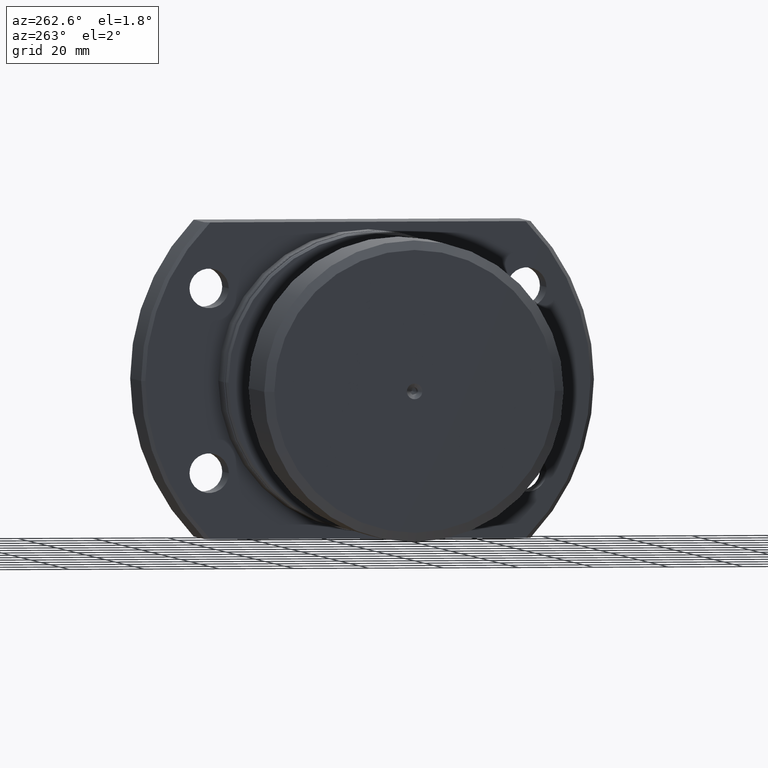
[diagram: clean part render]
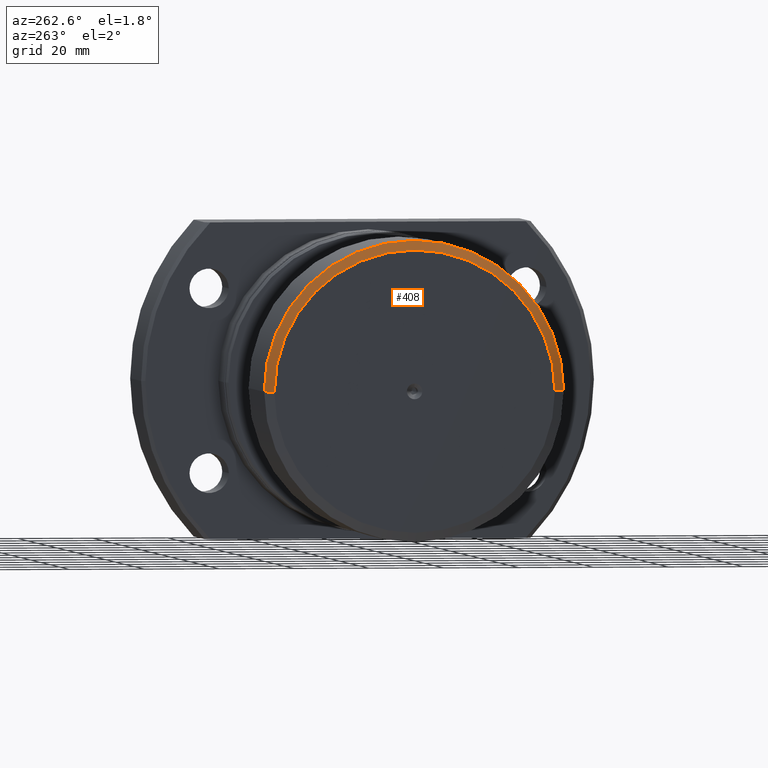
[diagram: same view with one face highlighted and labeled with its STEP entity id]
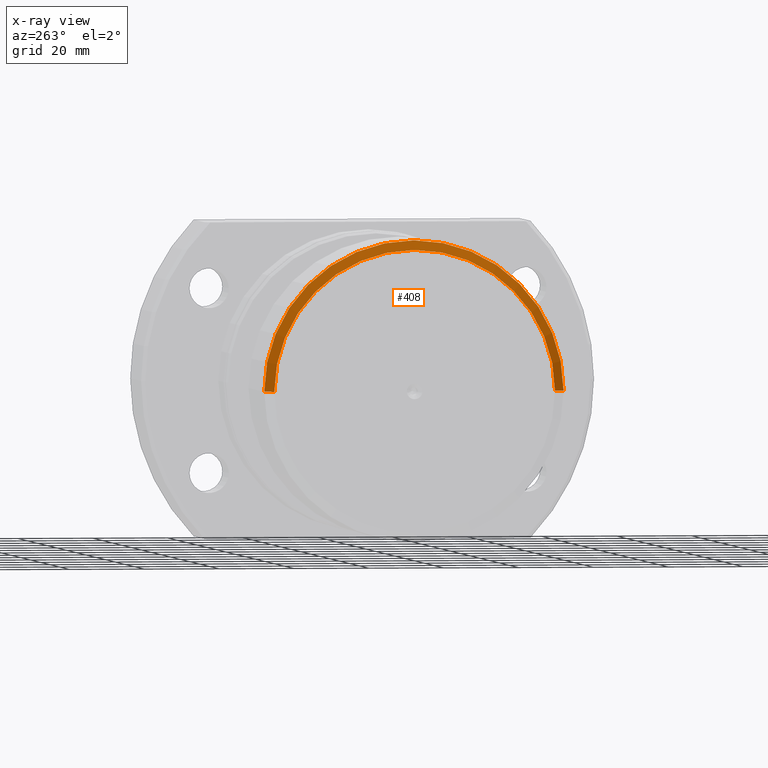
[diagram: x-ray of the same camera — body ghosted, the highlighted face saturated]
A machine part, auxiliary view. The second image highlights one B-rep face of the part: STEP entity #408.
The next image is the same camera in x-ray: the body ghosted, the highlighted face saturated — about 0% of this face is hidden behind the body in this view.
In plain terms, the highlighted conical surface has half-angle 59.036 deg.
Its self-contained STEP definition (entity closure, byte-faithful):
#98 = EDGE_CURVE ( 'NONE', #105, #2167, #2087, .T. ) ;
#105 = VERTEX_POINT ( 'NONE', #157 ) ;
#157 = CARTESIAN_POINT ( 'NONE',  ( 1.500000000000005107, -39.99999999999999289, 4.898587196589412237E-15 ) ) ;
#166 = CONICAL_SURFACE ( 'NONE', #834, 37.49999999999999289, 1.030376826524312728 ) ;
#174 = VECTOR ( 'NONE', #2445, 999.9999999999998863 ) ;
#197 = EDGE_CURVE ( 'NONE', #1942, #2563, #3121, .T. ) ;
#209 = ORIENTED_EDGE ( 'NONE', *, *, #197, .F. ) ;
#364 = AXIS2_PLACEMENT_3D ( 'NONE', #2619, #436, #366 ) ;
#366 = DIRECTION ( 'NONE',  ( 1.084202172485504588E-17, -1.000000000000000000, 0.000000000000000000 ) ) ;
#408 = ADVANCED_FACE ( 'NONE', ( #2768 ), #166, .T. ) ;
#436 = DIRECTION ( 'NONE',  ( -1.000000000000000000, -1.069542322069065801E-17, -0.000000000000000000 ) ) ;
#696 = CARTESIAN_POINT ( 'NONE',  ( 4.191347126026673560E-15, 4.482823137768074044E-32, 0.000000000000000000 ) ) ;
#710 = EDGE_CURVE ( 'NONE', #2563, #2167, #2234, .T. ) ;
#820 = DIRECTION ( 'NONE',  ( 1.000000000000000000, 1.069542322069065801E-17, 0.000000000000000000 ) ) ;
#834 = AXIS2_PLACEMENT_3D ( 'NONE', #2576, #820, #1053 ) ;
#981 = DIRECTION ( 'NONE',  ( 0.5144957554275262357, 0.8574929257125444293, 0.000000000000000000 ) ) ;
#1053 = DIRECTION ( 'NONE',  ( -1.069542322069066725E-17, 1.000000000000000000, 0.000000000000000000 ) ) ;
#1398 = DIRECTION ( 'NONE',  ( -1.000000000000000000, -1.069542322069065801E-17, -0.000000000000000000 ) ) ;
#1768 = CARTESIAN_POINT ( 'NONE',  ( 3.790268755250773542E-15, 37.49999999999999289, 0.000000000000000000 ) ) ;
#1865 = CARTESIAN_POINT ( 'NONE',  ( 4.592425496802573578E-15, -37.49999999999999289, 4.745506346695992513E-15 ) ) ;
#1942 = VERTEX_POINT ( 'NONE', #1865 ) ;
#2087 = CIRCLE ( 'NONE', #364, 39.99999999999999289 ) ;
#2123 = EDGE_CURVE ( 'NONE', #1942, #105, #2651, .T. ) ;
#2167 = VERTEX_POINT ( 'NONE', #2671 ) ;
#2234 = LINE ( 'NONE', #1768, #2664 ) ;
#2300 = EDGE_LOOP ( 'NONE', ( #209, #3171, #2809, #2442 ) ) ;
#2442 = ORIENTED_EDGE ( 'NONE', *, *, #710, .F. ) ;
#2445 = DIRECTION ( 'NONE',  ( 0.5144957554275262357, -0.8574929257125444293, 1.050125966765366654E-16 ) ) ;
#2563 = VERTEX_POINT ( 'NONE', #2986 ) ;
#2576 = CARTESIAN_POINT ( 'NONE',  ( 4.191347126026673560E-15, 4.482823137768074044E-32, 0.000000000000000000 ) ) ;
#2619 = CARTESIAN_POINT ( 'NONE',  ( 1.500000000000004663, 1.604313483103603400E-17, 0.000000000000000000 ) ) ;
#2651 = LINE ( 'NONE', #2944, #174 ) ;
#2664 = VECTOR ( 'NONE', #981, 999.9999999999998863 ) ;
#2668 = DIRECTION ( 'NONE',  ( 1.069542322069066725E-17, -1.000000000000000000, 0.000000000000000000 ) ) ;
#2671 = CARTESIAN_POINT ( 'NONE',  ( 1.500000000000004219, 39.99999999999999289, 0.000000000000000000 ) ) ;
#2768 = FACE_OUTER_BOUND ( 'NONE', #2300, .T. ) ;
#2809 = ORIENTED_EDGE ( 'NONE', *, *, #98, .T. ) ;
#2816 = AXIS2_PLACEMENT_3D ( 'NONE', #696, #1398, #2668 ) ;
#2944 = CARTESIAN_POINT ( 'NONE',  ( 4.592425496802573578E-15, -37.49999999999999289, 4.592425496802573578E-15 ) ) ;
#2986 = CARTESIAN_POINT ( 'NONE',  ( 3.790268755250773542E-15, 37.49999999999999289, 0.000000000000000000 ) ) ;
#3121 = CIRCLE ( 'NONE', #2816, 37.49999999999999289 ) ;
#3171 = ORIENTED_EDGE ( 'NONE', *, *, #2123, .T. ) ;